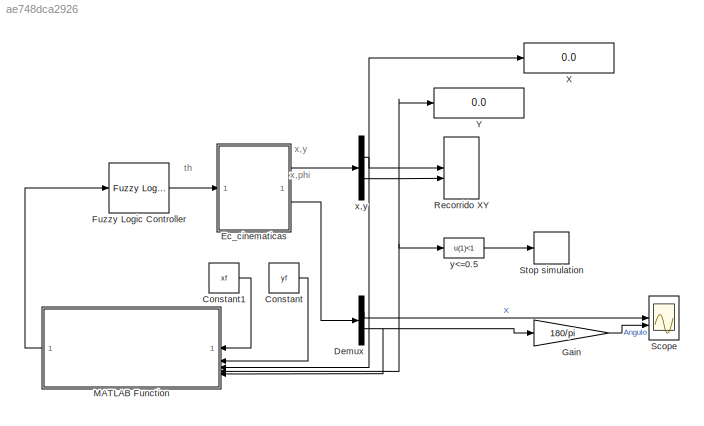
MODEL slx_ae748dca2926
KIND model
CONFIG AbsTol = auto
CONFIG EnableMultiTasking = off
CONFIG FixedStep = auto
CONFIG InitFcn = fismovil = readfis("fismovil3.fis");
CONFIG MaxStep = auto
CONFIG MinStep = auto
CONFIG RelTol = 1e-3
CONFIG SampleTimeConstraint = Unconstrained
CONFIG SolverName = VariableStepAuto
CONFIG StartTime = 0.0
CONFIG StopTime = Tsim
BLOCK [Constant] Constant
  Value = yf
BLOCK [Constant] Constant1
  Value = xf
BLOCK [Demux] Demux
  Outputs = 2
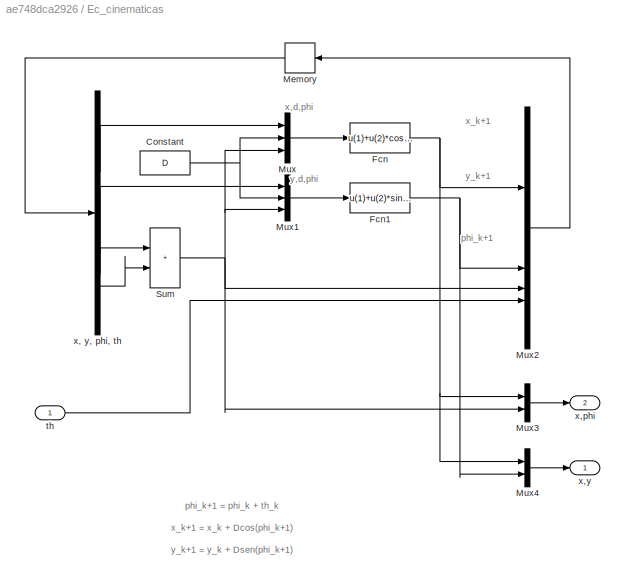
BLOCK [SubSystem] Ec_cinematicas
BLOCK [Constant] Ec_cinematicas/Constant
  Value = D
BLOCK [Fcn] Ec_cinematicas/Fcn
  Expr = u(1)+u(2)*cos(u(3))
BLOCK [Fcn] Ec_cinematicas/Fcn1
  Expr = u(1)+u(2)*sin(u(3))
BLOCK [Memory] Ec_cinematicas/Memory
  InitialCondition = [X Y Phi 0]
  NameLocation = top
BLOCK [Mux] Ec_cinematicas/Mux
  DisplayOption = bar
  Inputs = 3
BLOCK [Mux] Ec_cinematicas/Mux1
  DisplayOption = bar
  Inputs = 3
BLOCK [Mux] Ec_cinematicas/Mux2
  DisplayOption = bar
BLOCK [Mux] Ec_cinematicas/Mux3
  DisplayOption = bar
  Inputs = 2
BLOCK [Mux] Ec_cinematicas/Mux4
  DisplayOption = bar
  Inputs = 2
BLOCK [Sum] Ec_cinematicas/Sum
  IconShape = rectangular
BLOCK [Inport] Ec_cinematicas/th
BLOCK [Demux] Ec_cinematicas/x, y, phi, th
BLOCK [Outport] Ec_cinematicas/x,phi
  Port = 2
BLOCK [Outport] Ec_cinematicas/x,y
BLOCK [Reference] Fuzzy Logic Controller  REF=fuzblock/Fuzzy Logic   (lib defined in mdl_858b3b3e7478)
Controller
  SourceBlock = fuzblock/Fuzzy Logic \nController
  SourceType = Fuzzy Inference System
BLOCK [Gain] Gain
  Gain = 180/pi
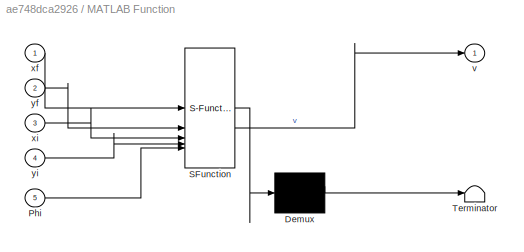
BLOCK [SubSystem] MATLAB Function
  ErrorFcn = Stateflow.Translate.translate
  LibrarySourceBlock = simulink/User-Defined\nFunctions/MATLAB Function
  NameLocation = top
  PermitHierarchicalResolution = ExplicitOnly
  SFBlockType = MATLAB Function
  TreatAsAtomicUnit = on
BLOCK [Demux] MATLAB Function/ Demux 
  Outputs = 1
BLOCK [S-Function] MATLAB Function/ SFunction 
  EnableBusSupport = on
  FunctionName = sf_sfun
  PortCounts = [5 2]
  SFcnIsStateOwnerBlock = off
  SFunctionDeploymentMode = off
  Tag = Stateflow S-Function 2
BLOCK [Terminator] MATLAB Function/ Terminator 
BLOCK [Inport] MATLAB Function/Phi
  Port = 5
BLOCK [Outport] MATLAB Function/v
BLOCK [Inport] MATLAB Function/xf
BLOCK [Inport] MATLAB Function/xi
  Port = 3
BLOCK [Inport] MATLAB Function/yf
  Port = 2
BLOCK [Inport] MATLAB Function/yi
  Port = 4
BLOCK [Record] Recorrido XY
  CompatibilityTag = XY
  FileSettingsInternal = {"entries":[{"content":{"excelSettings":{"content":{},"type":"Streamout.ExcelSettings"}},"type":"Streamout.FileSettingStorage","uuid":""}],"packageUris":["http:\/\/schema.mathworks.com\/mf0\/streamout_blocks\/R2020a"],"version":"1.0"}
  Layout = [1 1]
  SignalsInternal = {"entries":[{"content":{"signals":[{"content":{"blockPath":[],"channel":[],"dimensions":[1],"domain":"","lineColor":"#77ac30","plots":[],"port":1,"sid":[""],"signalID":438,"signalName":"x,y:1"},"type":"RecordBlkView.Signal","uuid":""},{"content":{"blockPath":[],"channel":[],"dimensions":[1],"domain":"","lineColor":"#4dbeee","plots":[],"port":2,"sid":[""],"signalID":442,"signalName":"x,y:2"},"type"...<+180ch>
  VisualizationBindings = {"xyplotplugin":{"info":[{"series":[],"subplotID":1}]}}
  st = -1
BLOCK [Scope] Scope
  Floating = off
  NumInputPorts = 2
  ScopeSpecificationString = Simulink.scopes.TimeScopeBlockCfg('CurrentConfiguration', extmgr.ConfigurationSet(extmgr.Configuration('Core','General UI',true),extmgr.Configuration('Core','Source UI',true),extmgr.Configuration('Sources','WiredSimulink',true,'DataLoggingSaveFormat','StructureWithTime','DataLoggingLimitDataPoints',true,'DataLoggingDecimation','1','DataLoggingDecimateData',true),extmgr.Configuration('Visuals','Tim...<+2344ch>
BLOCK [Stop] Stop simulation
BLOCK [Display] X
  Decimation = 1
BLOCK [Display] Y
  Decimation = 1
BLOCK [Demux] x,y
  Outputs = 2
BLOCK [Fcn] y<=0.5
  Expr = u(1)<1
ANNOTATION (root): th
ANNOTATION (root): x,phi
ANNOTATION (root): x,y
ANNOTATION Ec_cinematicas: phi_k+1
ANNOTATION Ec_cinematicas: phi_k+1 = phi_k + th_k x_k+1 = x_k + Dcos(phi_k+1) y_k+1 = y_k + Dsen(phi_k+1)
ANNOTATION Ec_cinematicas: x,d,phi
ANNOTATION Ec_cinematicas: x_k+1
ANNOTATION Ec_cinematicas: y,d,phi
ANNOTATION Ec_cinematicas: y_k+1
LINE Constant1:1 -> MATLAB Function:1
LINE Constant:1 -> MATLAB Function:2
LINE Demux:1 -> Scope:1
NET Demux:2 -> Gain:1, MATLAB Function:5
NET Ec_cinematicas/Constant:1 -> Ec_cinematicas/Mux1:2, Ec_cinematicas/Mux:2
NET Ec_cinematicas/Fcn1:1 -> Ec_cinematicas/Mux2:2, Ec_cinematicas/Mux4:2
NET Ec_cinematicas/Fcn:1 -> Ec_cinematicas/Mux2:1, Ec_cinematicas/Mux3:1, Ec_cinematicas/Mux4:1
LINE Ec_cinematicas/Memory:1 -> Ec_cinematicas/x, y, phi, th:1
LINE Ec_cinematicas/Mux1:1 -> Ec_cinematicas/Fcn1:1
LINE Ec_cinematicas/Mux2:1 -> Ec_cinematicas/Memory:1
LINE Ec_cinematicas/Mux3:1 -> Ec_cinematicas/x,phi:1
LINE Ec_cinematicas/Mux4:1 -> Ec_cinematicas/x,y:1
LINE Ec_cinematicas/Mux:1 -> Ec_cinematicas/Fcn:1
NET Ec_cinematicas/Sum:1 -> Ec_cinematicas/Mux1:3, Ec_cinematicas/Mux2:3, Ec_cinematicas/Mux3:2, Ec_cinematicas/Mux:3
LINE Ec_cinematicas/th:1 -> Ec_cinematicas/Mux2:4
LINE Ec_cinematicas/x, y, phi, th:1 -> Ec_cinematicas/Mux:1
LINE Ec_cinematicas/x, y, phi, th:2 -> Ec_cinematicas/Mux1:1
LINE Ec_cinematicas/x, y, phi, th:3 -> Ec_cinematicas/Sum:1
LINE Ec_cinematicas/x, y, phi, th:4 -> Ec_cinematicas/Sum:2
LINE Ec_cinematicas:1 -> x,y:1
LINE Ec_cinematicas:2 -> Demux:1
LINE Fuzzy Logic Controller:1 -> Ec_cinematicas:1
LINE Gain:1 -> Scope:2
LINE MATLAB Function:1 -> Fuzzy Logic Controller:1
NET x,y:1 -> MATLAB Function:3, Recorrido XY:1, X:1
NET x,y:2 -> MATLAB Function:4, Recorrido XY:2, Y:1, y<=0.5:1
LINE y<=0.5:1 -> Stop simulation:1
note: NET lines group one-source signal fan-out (src -> all destinations, sorted); 1:1 wires keep LINE
CHART MATLAB Function states=1 transitions=1
  STATE_LABEL 'eML_blk_kernel()'
  STATE_LABEL 'SCRIPT:\n%  Cálculo de la DISTANCIA  que separa al móvil de su\n%  punto final y del ángulo GAMA necesario para calcular\n%  el ángulo ALFA, perteneciente al sistema de conducción de un móvil\n% u = [ xf ; yf ; xi ; yi ; Phi]\n% v = [ Alfa ; Distancia ] \n\n\nfunction v = Dist_Gama(xf, yf, xi, yi, Phi)\n\n% Cálculo de la distancia\n  dX        = abs(xf - xi);\n  dY        = abs(yf - yi); \n  distancia = sqrt(d...<+830ch>'
CHART  states=0 transitions=0
